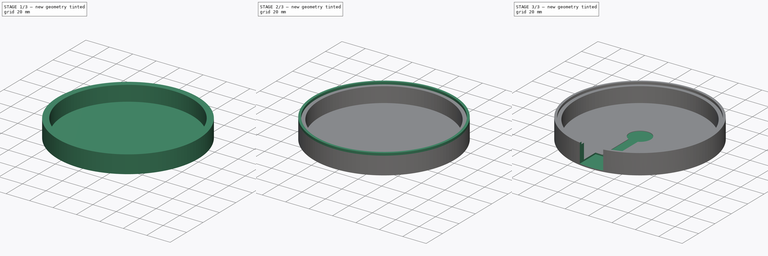
[diagram: build sequence overview — one tinted view per stage of 3, left to right]
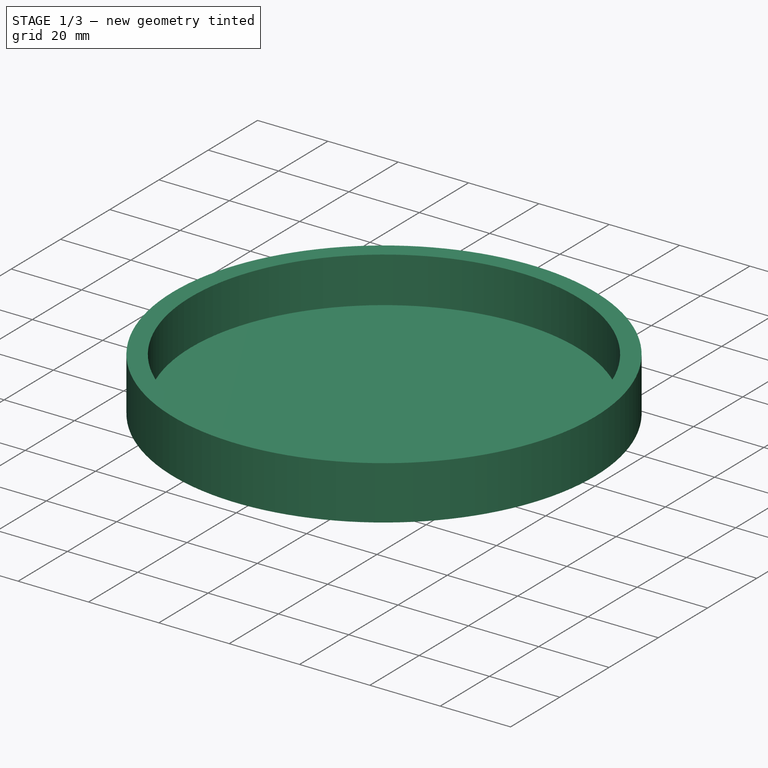
[diagram: stage 1 of 3 — iso view after this stage's code; geometry added in this stage tinted green]
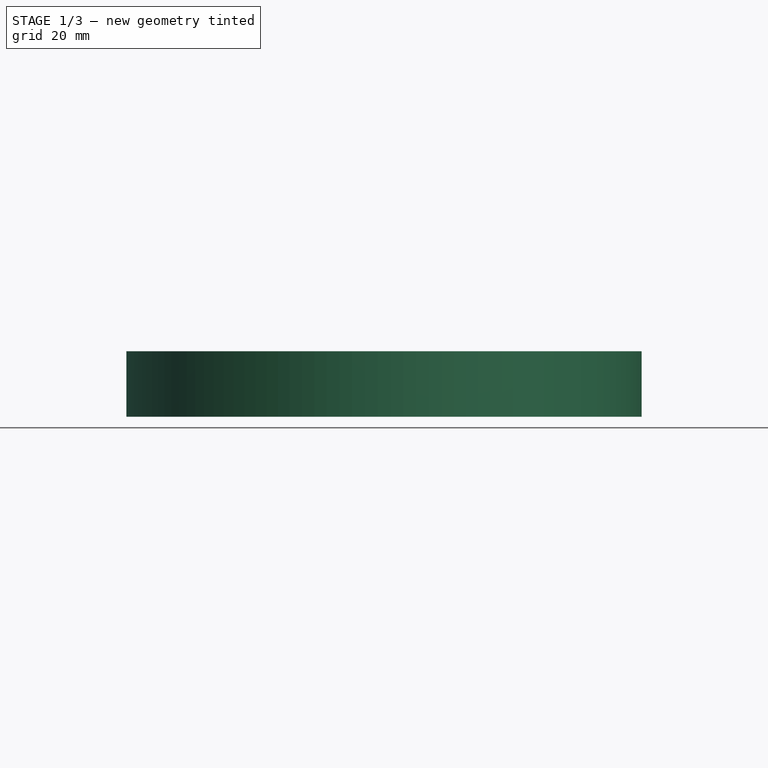
[diagram: stage 1 of 3 — front view after this stage's code; geometry added in this stage tinted green]
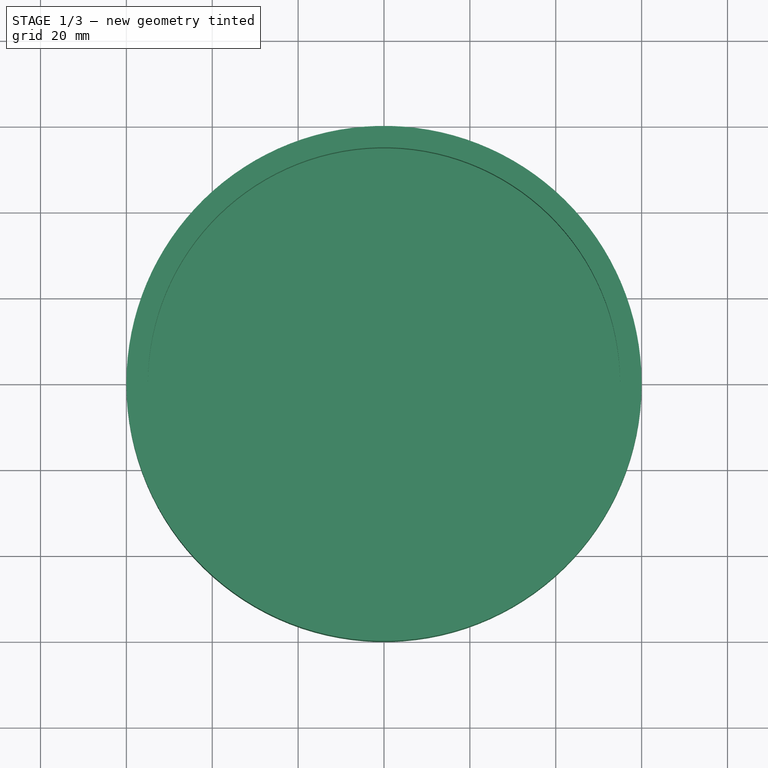
[diagram: stage 1 of 3 — top view after this stage's code; geometry added in this stage tinted green]
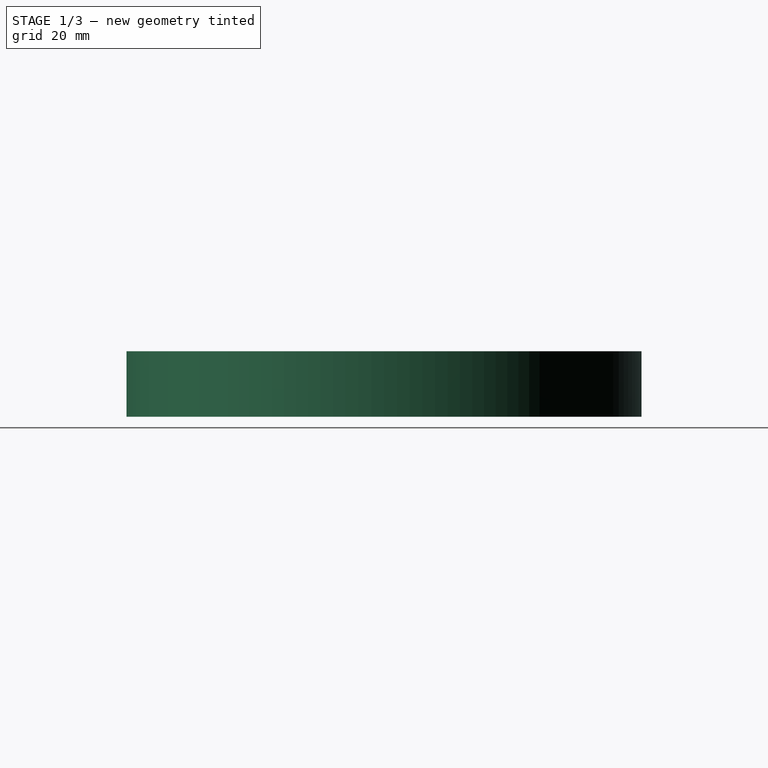
[diagram: stage 1 of 3 — right view after this stage's code; geometry added in this stage tinted green]
FCSTD DOCUMENT  (FreeCAD 1.0R39109 (Git))
Label: base
License: All rights reserved
LicenseURL: https://en.wikipedia.org/wiki/All_rights_reserved
objects: Sketcher::SketchObject×5, PartDesign::Pocket×3, PartDesign::Pad×2, PartDesign::Body×1
note: 26 computed .brp shape members not serialized (recipe doc carries the construction recipe); baked Part::Feature solids carry a one-line shape summary decoded from their .brp

FEATURE [Sketcher::SketchObject] Sketch
  ArcFitTolerance = 1e-06
  AttachmentSupport = -> [XY_Plane]
  FullyConstrained = true
  MakeInternals = false
  MapMode = 5
  sketch-geometry (1):
    g0: Circle CenterX=0 CenterY=0 CenterZ=0 NormalX=0 NormalY=0 NormalZ=1 AngleXU=0 Radius=60
  constraints (2):
    c: Coincident(g0,g-1)
    c: Diameter(g0) = 120
FEATURE [PartDesign::Pad] Pad
  Direction = (0,0,1)
  Length = 15.25
  Length2 = 10
  Profile = -> Sketch
  ReferenceAxis = -> Sketch [N_Axis]
  Refine = true
  Suppressed = false
  Type = 0
FEATURE [Sketcher::SketchObject] Sketch001
  ArcFitTolerance = 1e-06
  AttachmentSupport = -> [Pad]
  ExternalGeometry = -> [Pad]
  FullyConstrained = true
  MakeInternals = false
  MapMode = 5
  Placement = pos=(0,0,15.25) rot=(0,0,1;0rad)
  sketch-geometry (1):
    g0: Circle CenterX=0 CenterY=0 CenterZ=0 NormalX=0 NormalY=0 NormalZ=1 AngleXU=0 Radius=55
  constraints (2):
    c: Coincident(g0,g-1)
    c: Distance(g0,g-3) = 5
FEATURE [PartDesign::Pocket] Pocket
  BaseFeature = -> Pad
  Direction = (0,0,-1)
  Length = 13
  Length2 = 5
  Profile = -> Sketch001
  ReferenceAxis = -> Sketch001 [N_Axis]
  Refine = true
  Suppressed = false
  Type = 0
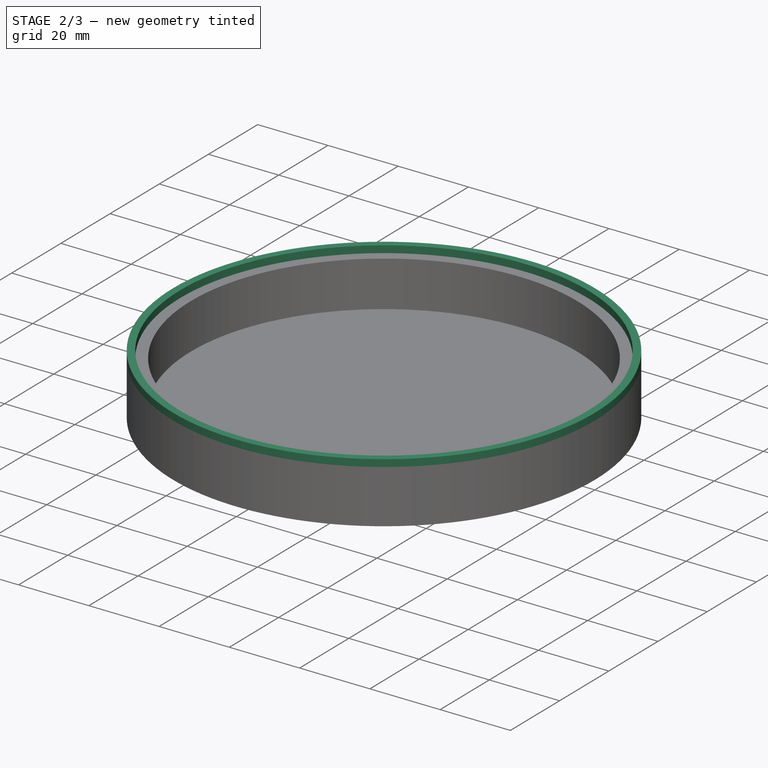
[diagram: stage 2 of 3 — iso view after this stage's code; geometry added in this stage tinted green]
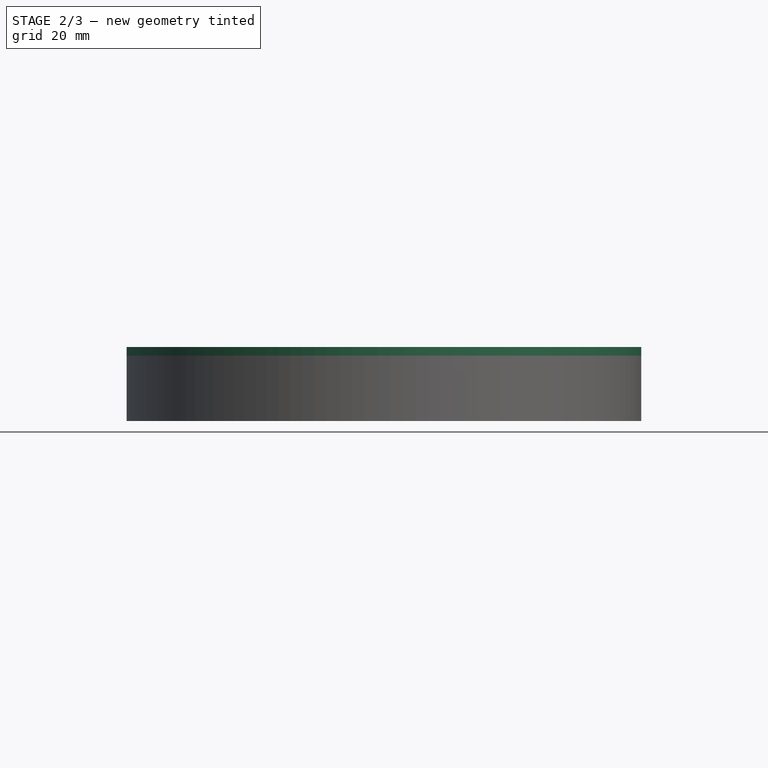
[diagram: stage 2 of 3 — front view after this stage's code; geometry added in this stage tinted green]
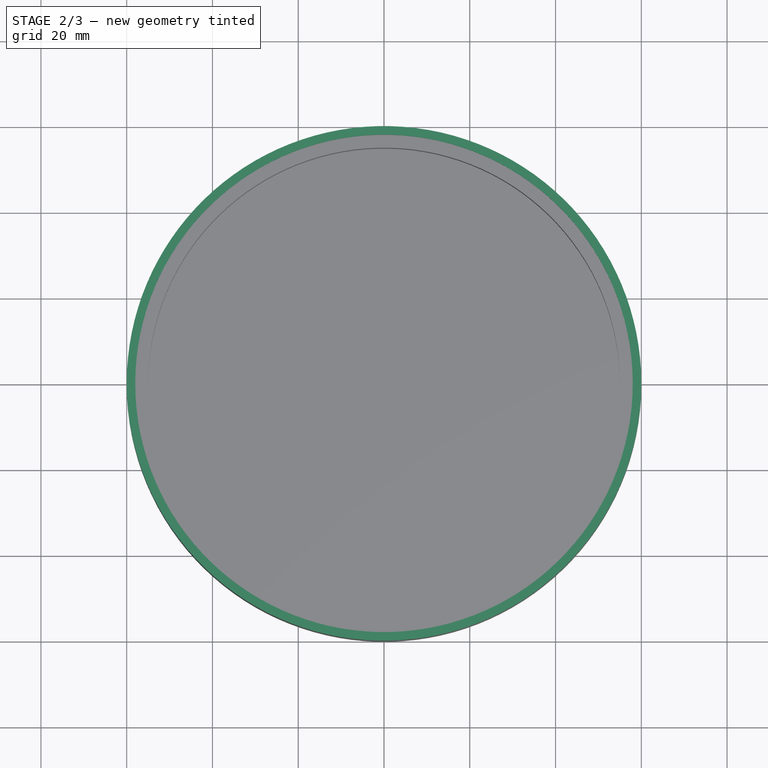
[diagram: stage 2 of 3 — top view after this stage's code; geometry added in this stage tinted green]
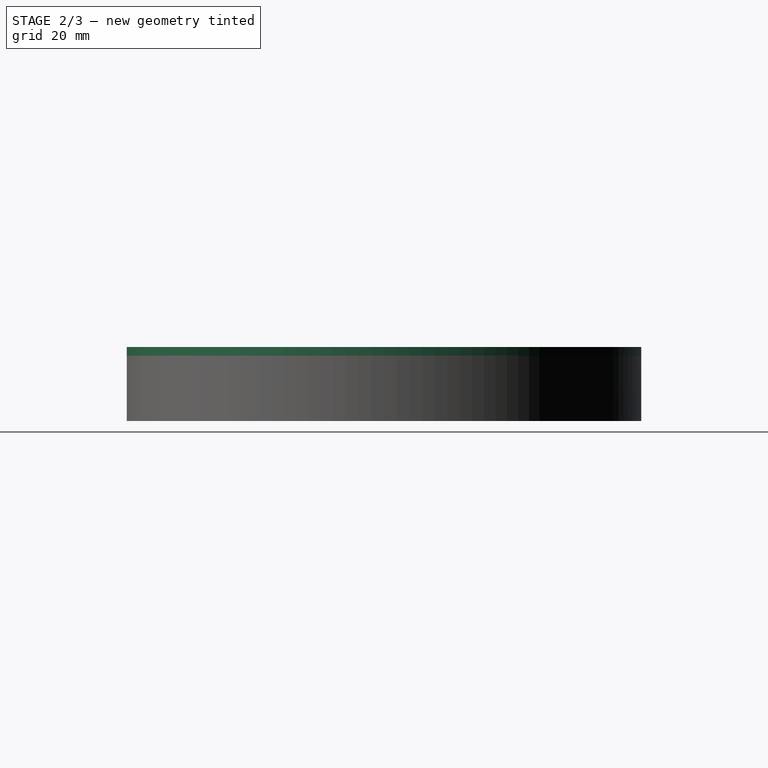
[diagram: stage 2 of 3 — right view after this stage's code; geometry added in this stage tinted green]
FEATURE [Sketcher::SketchObject] Sketch003
  ArcFitTolerance = 1e-06
  FullyConstrained = true
  MakeInternals = false
  MapMode = 5
  Placement = pos=(0,0,2.25) rot=(0,0,1;0rad)
  sketch-geometry (4):
    g0: LineSegment StartX=-4 StartY=-40 StartZ=0 EndX=4 EndY=-40 EndZ=0
    g1: LineSegment StartX=4 StartY=-40 StartZ=0 EndX=4 EndY=-8.34041 EndZ=0
    g2: LineSegment StartX=-4 StartY=-8.34041 StartZ=0 EndX=-4 EndY=-40 EndZ=0
    g3: ArcOfCircle CenterX=0 CenterY=0 CenterZ=0 NormalX=0 NormalY=0 NormalZ=1 AngleXU=0 Radius=9.25 StartAngle=5.15958 EndAngle=10.5484
  constraints (12):
    c: Coincident(g0,g1)
    c: Coincident(g2,g0)
    c: Vertical(g1)
    c: Vertical(g2)
    c: Coincident(g3,g-1)
    c: Coincident(g3,g1)
    c: Radius(g3) = 9.25
    c: Distance(g0,g0) = 8
    c: Horizontal(g2,g3)
    c: Symmetric(g0,g0,g-2)
    c: Horizontal(g1,g2)
    c: Distance(g3,g0) = 40
FEATURE [Sketcher::SketchObject] Sketch004
  ArcFitTolerance = 1e-06
  AttachmentSupport = -> [Pocket]
  ExternalGeometry = -> [Pocket]
  FullyConstrained = true
  MakeInternals = false
  MapMode = 5
  Placement = pos=(0,0,15.25) rot=(0,0,1;0rad)
  sketch-geometry (2):
    g0: Circle CenterX=0 CenterY=0 CenterZ=0 NormalX=0 NormalY=0 NormalZ=1 AngleXU=0 Radius=58
    g1: Circle CenterX=0 CenterY=0 CenterZ=0 NormalX=0 NormalY=0 NormalZ=1 AngleXU=0 Radius=60
  constraints (4):
    c: Coincident(g0,g-1)
    c: Coincident(g1,g0)
    c: Tangent(g1,g-3)
    c: Distance(g0,g1) = 2
FEATURE [PartDesign::Pad] Pad001
  BaseFeature = -> Pocket
  Direction = (0,0,1)
  Length = 2
  Length2 = 10
  Profile = -> Sketch004
  ReferenceAxis = -> Sketch004 [N_Axis]
  Refine = true
  Suppressed = false
  Type = 0
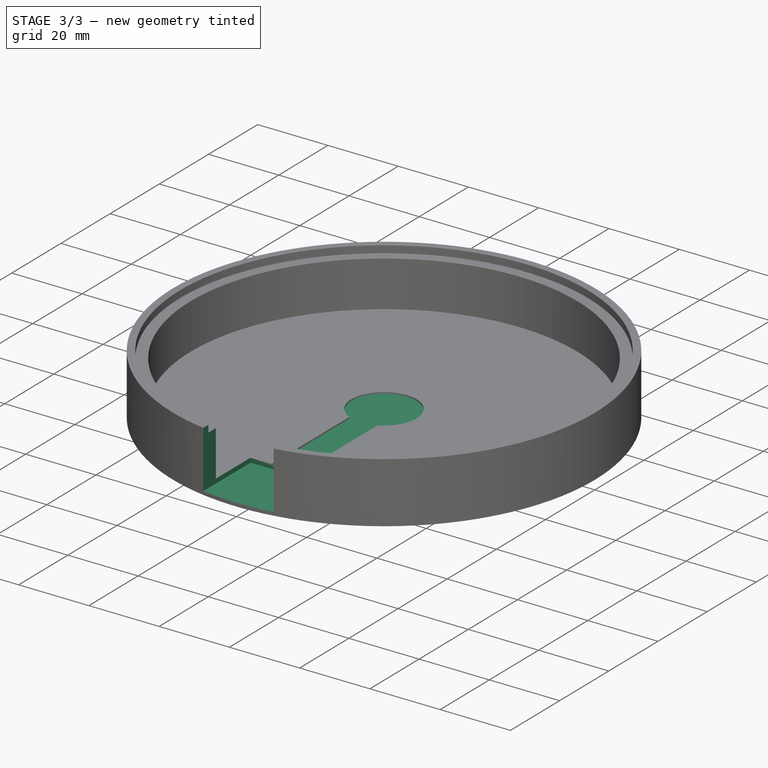
[diagram: stage 3 of 3 — iso view after this stage's code; geometry added in this stage tinted green]
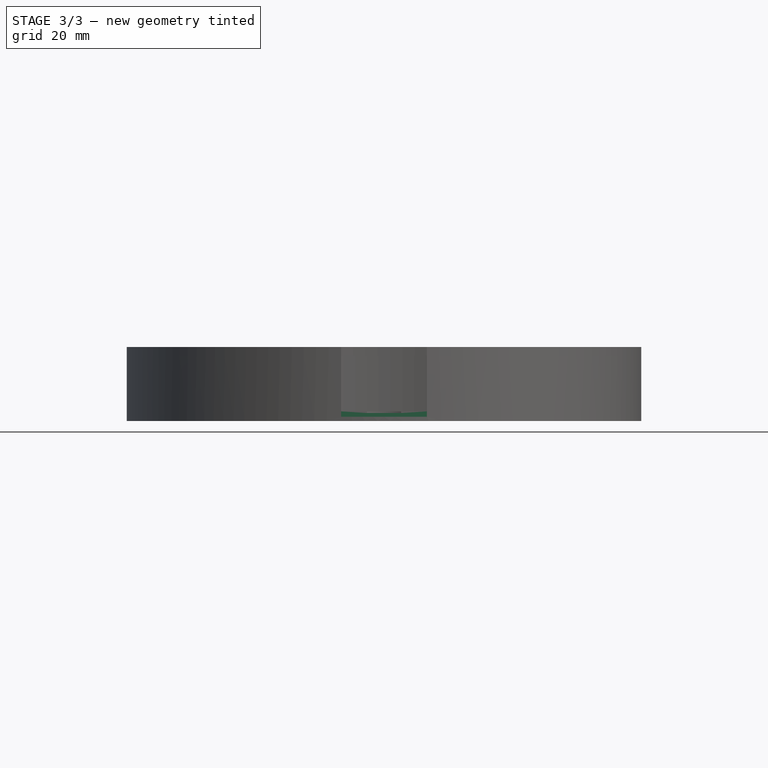
[diagram: stage 3 of 3 — front view after this stage's code; geometry added in this stage tinted green]
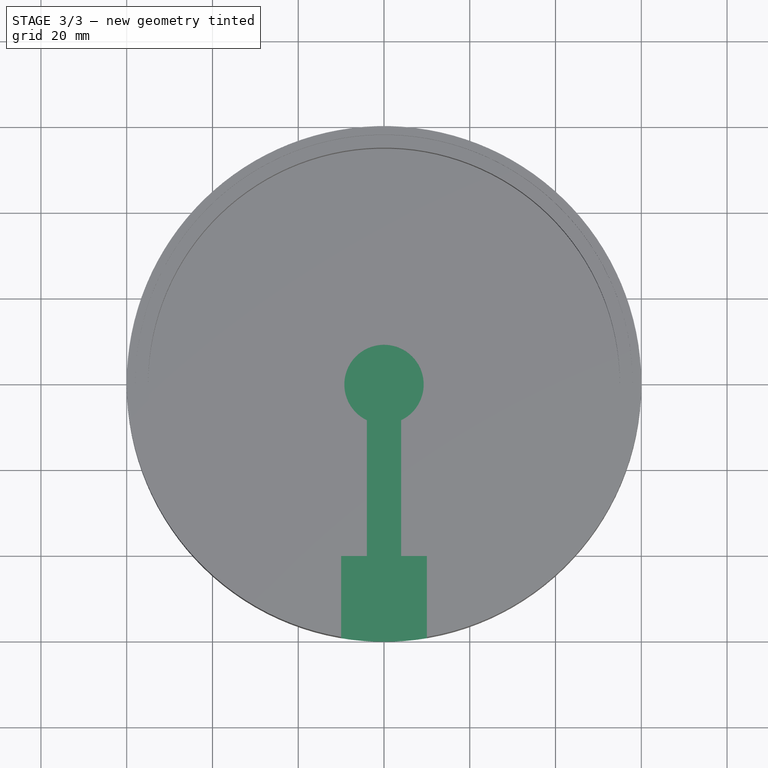
[diagram: stage 3 of 3 — top view after this stage's code; geometry added in this stage tinted green]
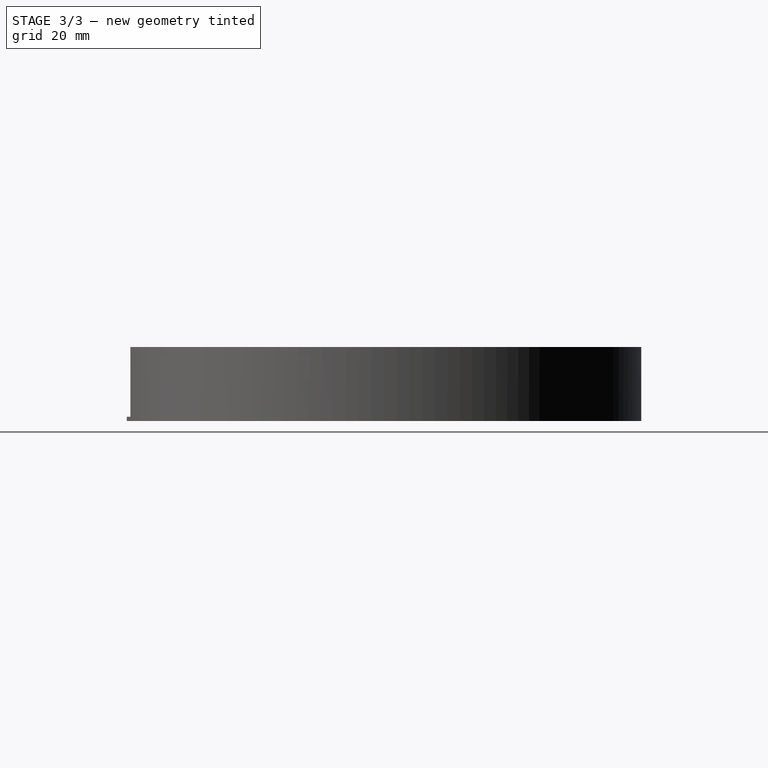
[diagram: stage 3 of 3 — right view after this stage's code; geometry added in this stage tinted green]
FEATURE [PartDesign::Pocket] Pocket002
  BaseFeature = -> Pad001
  Direction = (0,0,-1)
  Length = 0.4
  Length2 = 5
  Profile = -> Sketch003
  ReferenceAxis = -> Sketch003 [N_Axis]
  Refine = true
  Suppressed = false
  Type = 0
FEATURE [Sketcher::SketchObject] Sketch005
  ArcFitTolerance = 1e-06
  AttachmentSupport = -> [Pocket002]
  ExternalGeometry = -> [Pocket002]
  FullyConstrained = true
  MakeInternals = false
  MapMode = 5
  Placement = pos=(0,0,17.25) rot=(0,0,1;0rad)
  sketch-geometry (4):
    g0: LineSegment StartX=-10 StartY=-60 StartZ=0 EndX=10 EndY=-60 EndZ=0
    g1: LineSegment StartX=10 StartY=-60 StartZ=0 EndX=10 EndY=-40 EndZ=0
    g2: LineSegment StartX=10 StartY=-40 StartZ=0 EndX=-10 EndY=-40 EndZ=0
    g3: LineSegment StartX=-10 StartY=-40 StartZ=0 EndX=-10 EndY=-60 EndZ=0
  constraints (10):
    c: Coincident(g0,g1)
    c: Coincident(g1,g2)
    c: Coincident(g2,g3)
    c: Coincident(g3,g0)
    c: Vertical(g1)
    c: Vertical(g3)
    c: Symmetric(g0,g0,g-2)
    c: Tangent(g-4,g0)
    c: Tangent(g-3,g2)
    c: Distance(g3,g1) = 20
FEATURE [PartDesign::Pocket] Pocket003
  BaseFeature = -> Pocket002
  Direction = (0,0,-1)
  Length = 0
  Length2 = 5
  Offset = -1
  Profile = -> Sketch005
  ReferenceAxis = -> Sketch005 [N_Axis]
  Refine = true
  Suppressed = false
  Type = 3
  UpToFace = -> Pocket002 [Face2]
FEATURE [PartDesign::Body] Body
  AllowCompound = false
  Group = -> [Sketch,Pad,Sketch001,Pocket,Sketch004,Pad001,Sketch003,Pocket002,Sketch005,Pocket003]
  Origin = -> Origin
  Tip = -> Pocket003
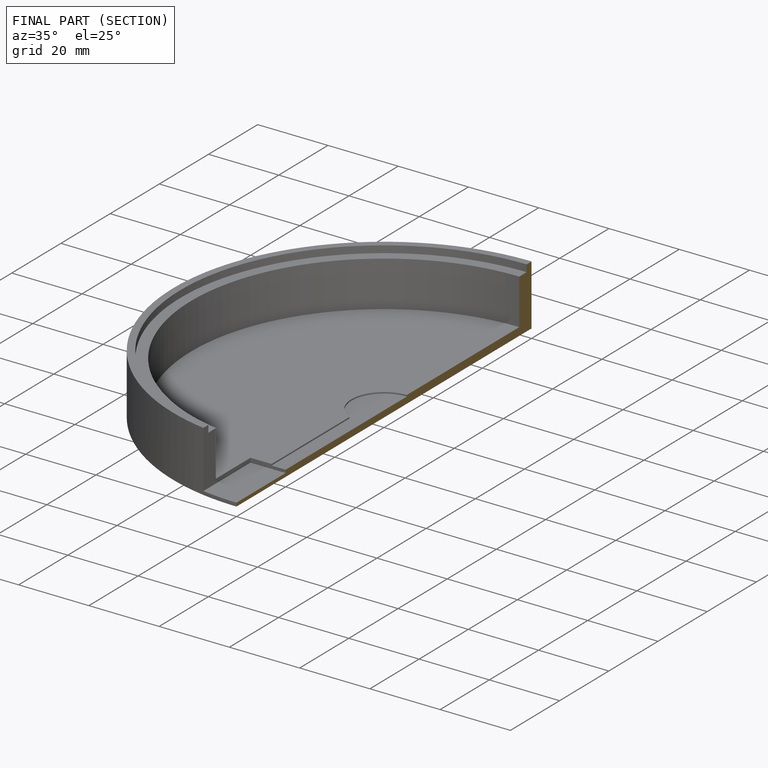
[diagram: finished part — half-section view (interior)]
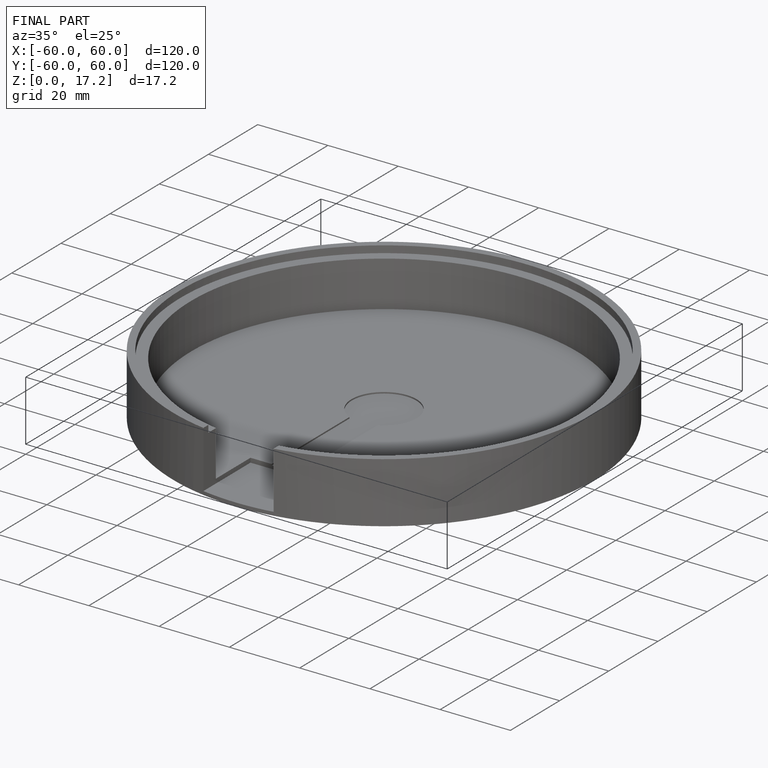
[diagram: finished part — iso view with bounding-box wireframe]
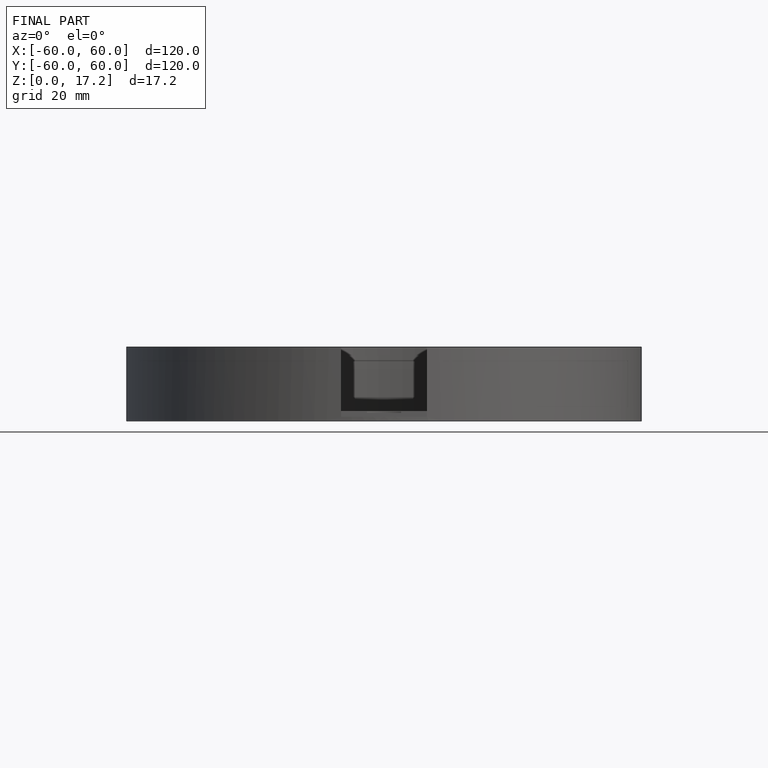
[diagram: finished part — front view with bounding-box wireframe]
